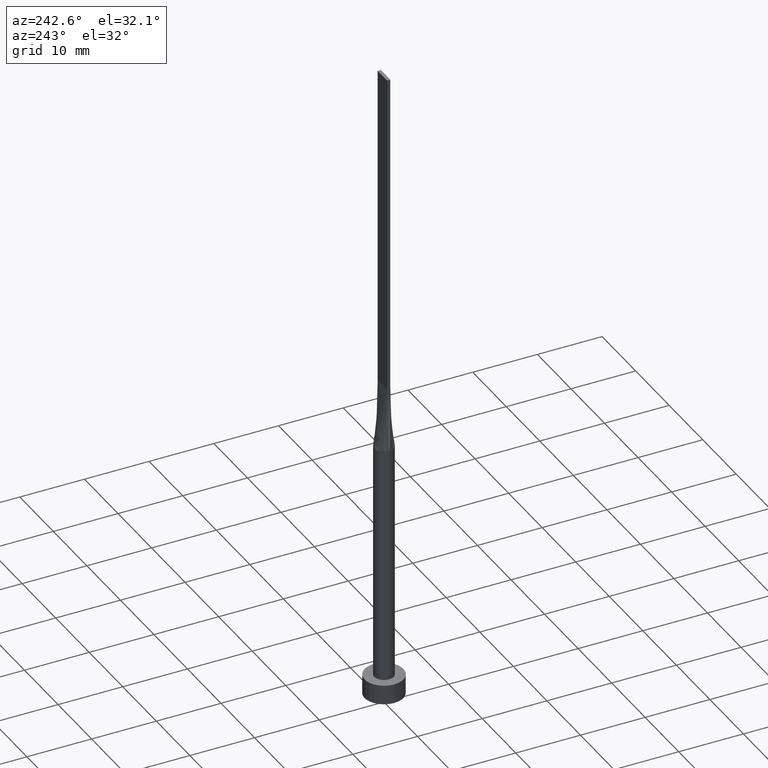
[diagram: clean part render]
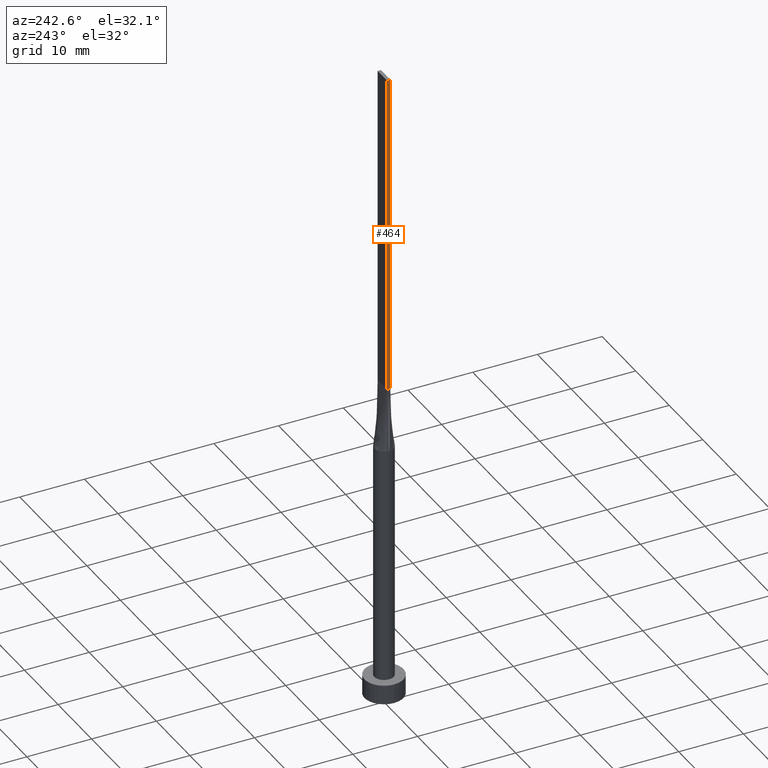
[diagram: same view with one face highlighted and labeled with its STEP entity id]
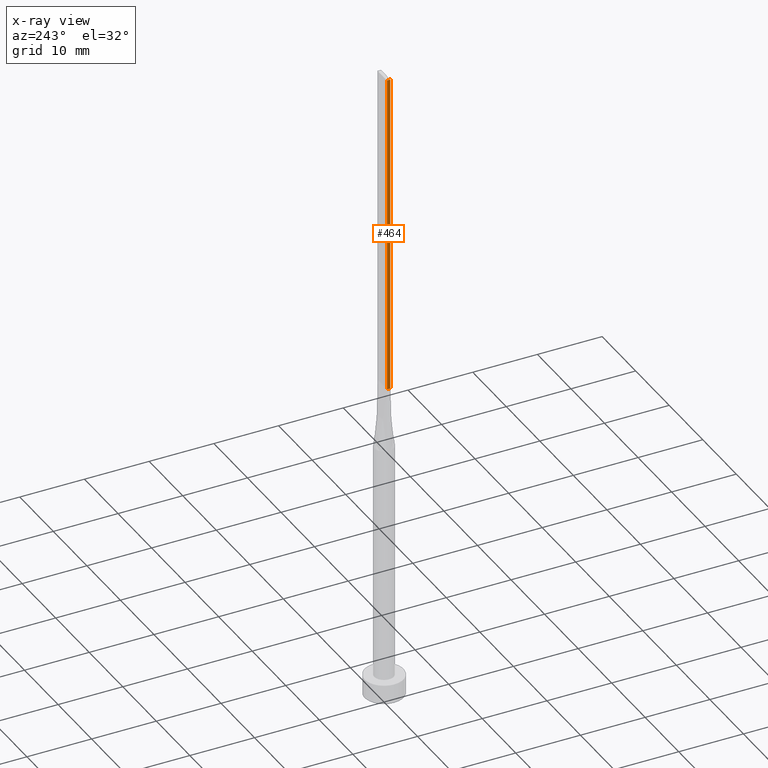
[diagram: x-ray of the same camera — body ghosted, the highlighted face saturated]
A machine part, auxiliary view. The second image highlights one B-rep face of the part: STEP entity #464.
The next image is the same camera in x-ray: the body ghosted, the highlighted face saturated — about 0% of this face is hidden behind the body in this view.
In plain terms, the highlighted planar face has unit normal (1, 0, -0).
Its self-contained STEP definition (entity closure, byte-faithful):
#36 = PLANE ( 'NONE',  #300 ) ;
#42 = EDGE_CURVE ( 'NONE', #372, #505, #257, .T. ) ;
#59 = CARTESIAN_POINT ( 'NONE',  ( -1.399999999999999911, -0.2499999999999996392, 100.0000000000000000 ) ) ;
#76 = VECTOR ( 'NONE', #465, 1000.000000000000000 ) ;
#95 = ORIENTED_EDGE ( 'NONE', *, *, #319, .T. ) ;
#107 = CARTESIAN_POINT ( 'NONE',  ( -1.399999999999999911, 0.2500000000000002220, 100.0000000000000000 ) ) ;
#129 = VERTEX_POINT ( 'NONE', #446 ) ;
#135 = CARTESIAN_POINT ( 'NONE',  ( -1.399999999999999911, 0.2500000000000002220, 100.0000000000000000 ) ) ;
#156 = CARTESIAN_POINT ( 'NONE',  ( -1.399999999999999911, 0.2500000000000002220, 50.00000000000000000 ) ) ;
#180 = LINE ( 'NONE', #356, #524 ) ;
#226 = ORIENTED_EDGE ( 'NONE', *, *, #471, .F. ) ;
#257 = LINE ( 'NONE', #341, #368 ) ;
#275 = VERTEX_POINT ( 'NONE', #59 ) ;
#300 = AXIS2_PLACEMENT_3D ( 'NONE', #400, #578, #473 ) ;
#301 = EDGE_CURVE ( 'NONE', #372, #275, #379, .T. ) ;
#314 = EDGE_LOOP ( 'NONE', ( #95, #226, #541, #455 ) ) ;
#319 = EDGE_CURVE ( 'NONE', #505, #129, #552, .T. ) ;
#341 = CARTESIAN_POINT ( 'NONE',  ( -1.399999999999999911, 0.2500000000000002220, 100.0000000000000000 ) ) ;
#343 = DIRECTION ( 'NONE',  ( -0.000000000000000000, -0.000000000000000000, -1.000000000000000000 ) ) ;
#351 = VECTOR ( 'NONE', #462, 1000.000000000000000 ) ;
#356 = CARTESIAN_POINT ( 'NONE',  ( -1.399999999999999911, -0.2499999999999996392, 100.0000000000000000 ) ) ;
#368 = VECTOR ( 'NONE', #478, 1000.000000000000000 ) ;
#372 = VERTEX_POINT ( 'NONE', #135 ) ;
#379 = LINE ( 'NONE', #107, #351 ) ;
#385 = CARTESIAN_POINT ( 'NONE',  ( -1.399999999999999911, 0.2500000000000002220, 50.00000000000000000 ) ) ;
#400 = CARTESIAN_POINT ( 'NONE',  ( -1.399999999999999911, 0.2500000000000002220, 100.0000000000000000 ) ) ;
#441 = FACE_OUTER_BOUND ( 'NONE', #314, .T. ) ;
#446 = CARTESIAN_POINT ( 'NONE',  ( -1.399999999999999911, -0.2499999999999996392, 50.00000000000000000 ) ) ;
#455 = ORIENTED_EDGE ( 'NONE', *, *, #42, .T. ) ;
#462 = DIRECTION ( 'NONE',  ( 0.000000000000000000, -1.000000000000000000, 0.000000000000000000 ) ) ;
#464 = ADVANCED_FACE ( 'NONE', ( #441 ), #36, .F. ) ;
#465 = DIRECTION ( 'NONE',  ( 0.000000000000000000, -1.000000000000000000, 0.000000000000000000 ) ) ;
#471 = EDGE_CURVE ( 'NONE', #275, #129, #180, .T. ) ;
#473 = DIRECTION ( 'NONE',  ( -0.000000000000000000, 0.000000000000000000, -1.000000000000000000 ) ) ;
#478 = DIRECTION ( 'NONE',  ( -0.000000000000000000, -0.000000000000000000, -1.000000000000000000 ) ) ;
#505 = VERTEX_POINT ( 'NONE', #385 ) ;
#524 = VECTOR ( 'NONE', #343, 1000.000000000000000 ) ;
#541 = ORIENTED_EDGE ( 'NONE', *, *, #301, .F. ) ;
#552 = LINE ( 'NONE', #156, #76 ) ;
#578 = DIRECTION ( 'NONE',  ( 1.000000000000000000, 0.000000000000000000, -0.000000000000000000 ) ) ;